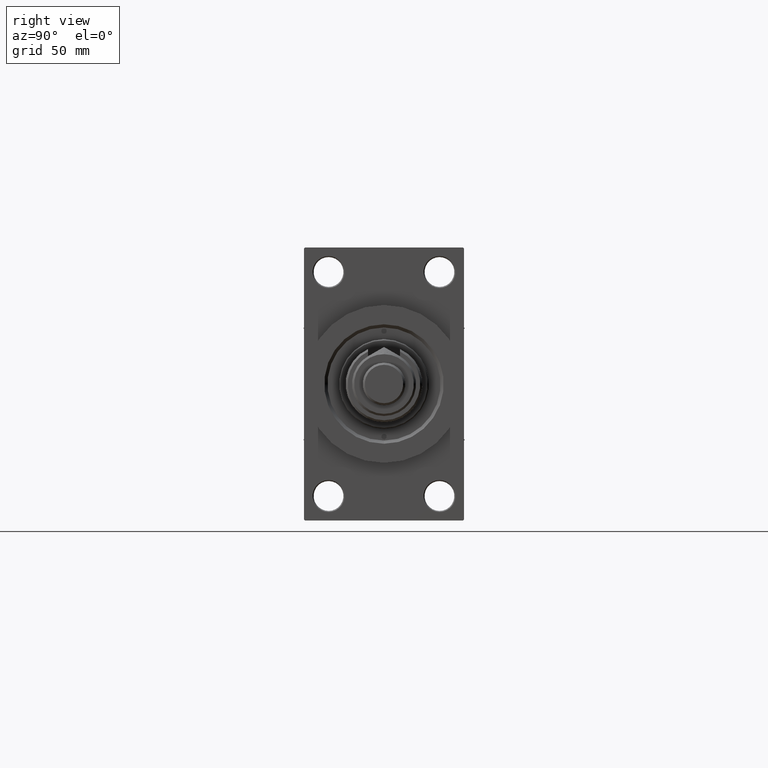
[diagram: clean part render]
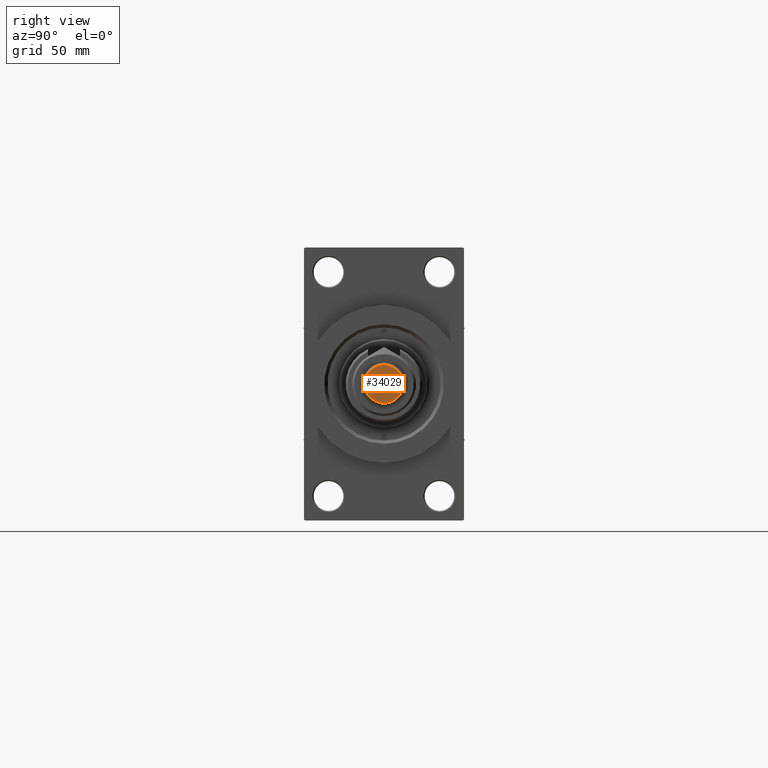
[diagram: same view with one face highlighted and labeled with its STEP entity id]
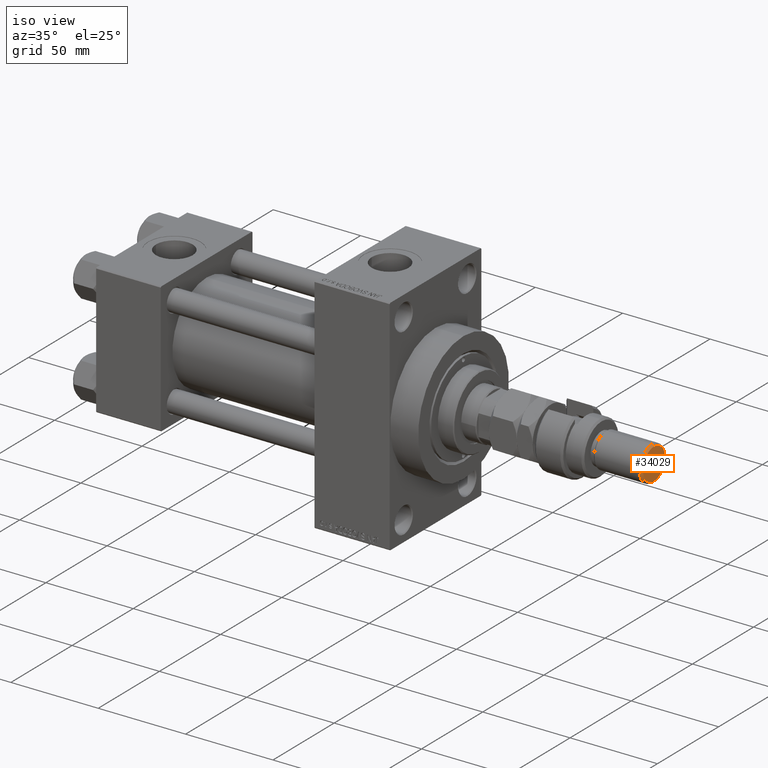
[diagram: same view with one face highlighted and labeled with its STEP entity id]
A machine part, right view. The second image highlights one B-rep face of the part: STEP entity #34029.
A second angle (iso view) of the same face is appended — the face is thin or edge-on in the first view.
In plain terms, the highlighted planar face has unit normal (1, 0, 0).
Its self-contained STEP definition (entity closure, byte-faithful):
#2419 = CARTESIAN_POINT ( 'NONE',  ( 0.000000000000000000, 0.000000000000000000, 56.00000000000000711 ) ) ;
#3634 = CARTESIAN_POINT ( 'NONE',  ( 8.999999999999987566, 1.163414459189984894E-15, 56.00000000000000711 ) ) ;
#6210 = PLANE ( 'NONE',  #29798 ) ;
#9577 = AXIS2_PLACEMENT_3D ( 'NONE', #2419, #25527, #17909 ) ;
#10011 = CARTESIAN_POINT ( 'NONE',  ( 0.000000000000000000, 0.000000000000000000, 56.00000000000000711 ) ) ;
#12320 = ORIENTED_EDGE ( 'NONE', *, *, #36702, .T. ) ;
#14003 = VERTEX_POINT ( 'NONE', #49832 ) ;
#17909 = DIRECTION ( 'NONE',  ( 1.000000000000000000, 0.000000000000000000, 0.000000000000000000 ) ) ;
#18041 = VERTEX_POINT ( 'NONE', #3634 ) ;
#21676 = AXIS2_PLACEMENT_3D ( 'NONE', #10011, #32891, #48396 ) ;
#21723 = DIRECTION ( 'NONE',  ( 1.000000000000000000, 0.000000000000000000, -0.000000000000000000 ) ) ;
#21786 = CIRCLE ( 'NONE', #9577, 8.999999999999987566 ) ;
#25257 = FACE_OUTER_BOUND ( 'NONE', #47237, .T. ) ;
#25527 = DIRECTION ( 'NONE',  ( 0.000000000000000000, 0.000000000000000000, 1.000000000000000000 ) ) ;
#29084 = DIRECTION ( 'NONE',  ( 0.000000000000000000, 0.000000000000000000, 1.000000000000000000 ) ) ;
#29798 = AXIS2_PLACEMENT_3D ( 'NONE', #37456, #29084, #21723 ) ;
#32891 = DIRECTION ( 'NONE',  ( 0.000000000000000000, 0.000000000000000000, 1.000000000000000000 ) ) ;
#34009 = EDGE_CURVE ( 'NONE', #14003, #18041, #39492, .T. ) ;
#34029 = ADVANCED_FACE ( 'NONE', ( #25257 ), #6210, .T. ) ;
#36702 = EDGE_CURVE ( 'NONE', #18041, #14003, #21786, .T. ) ;
#37456 = CARTESIAN_POINT ( 'NONE',  ( 0.000000000000000000, 0.000000000000000000, 56.00000000000000711 ) ) ;
#39492 = CIRCLE ( 'NONE', #21676, 8.999999999999987566 ) ;
#47237 = EDGE_LOOP ( 'NONE', ( #48637, #12320 ) ) ;
#48396 = DIRECTION ( 'NONE',  ( 1.000000000000000000, 0.000000000000000000, 0.000000000000000000 ) ) ;
#48637 = ORIENTED_EDGE ( 'NONE', *, *, #34009, .T. ) ;
#49832 = CARTESIAN_POINT ( 'NONE',  ( -8.999999999999987566, 0.000000000000000000, 56.00000000000000711 ) ) ;